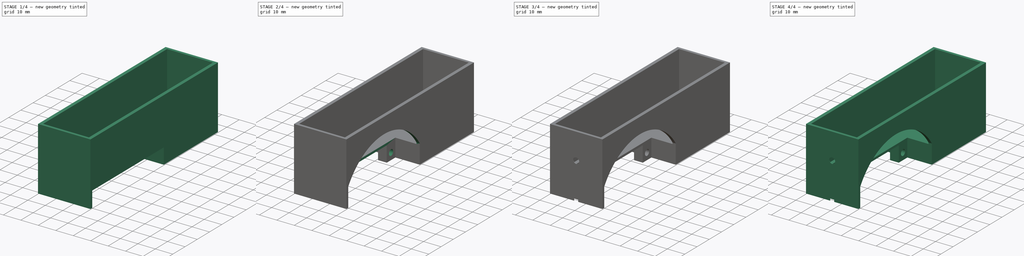
[diagram: build sequence overview — one tinted view per stage of 4, left to right]
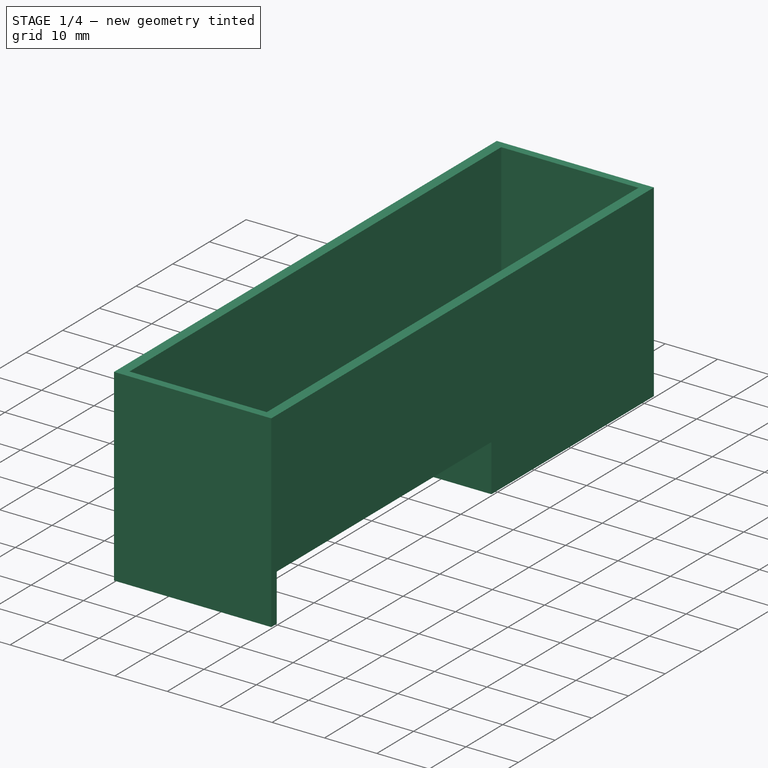
[diagram: stage 1 of 4 — iso view after this stage's code; geometry added in this stage tinted green]
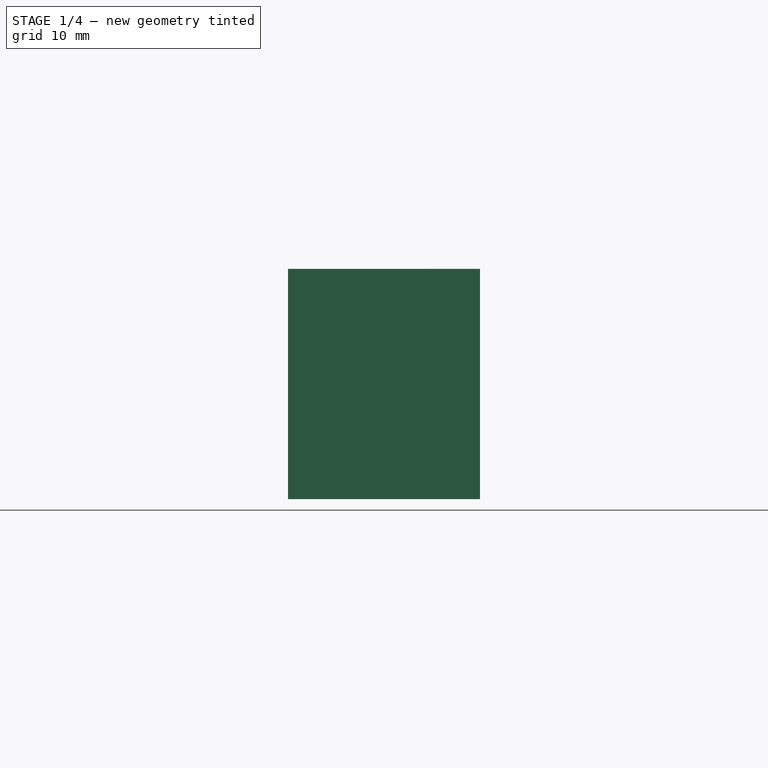
[diagram: stage 1 of 4 — front view after this stage's code; geometry added in this stage tinted green]
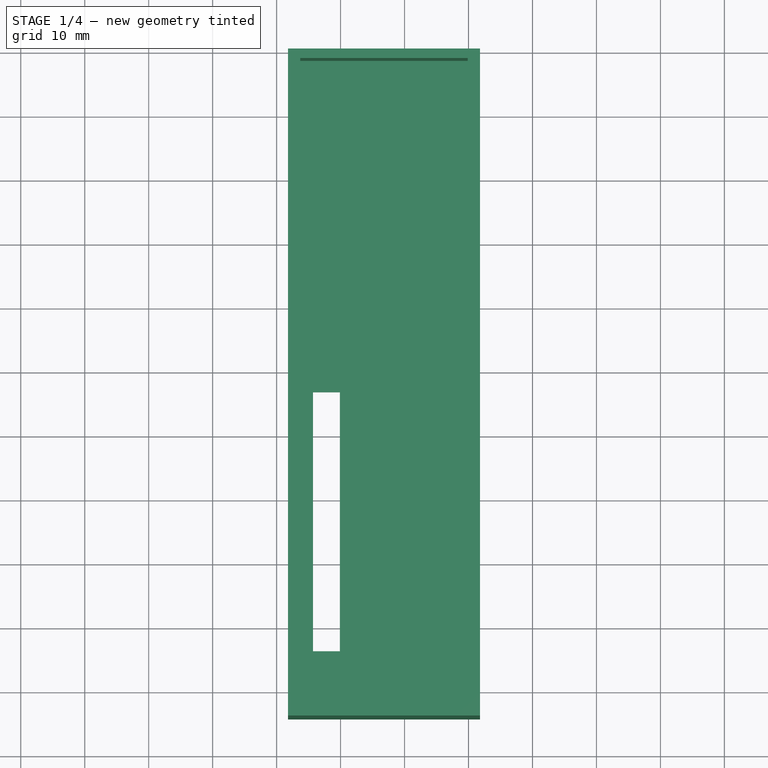
[diagram: stage 1 of 4 — top view after this stage's code; geometry added in this stage tinted green]
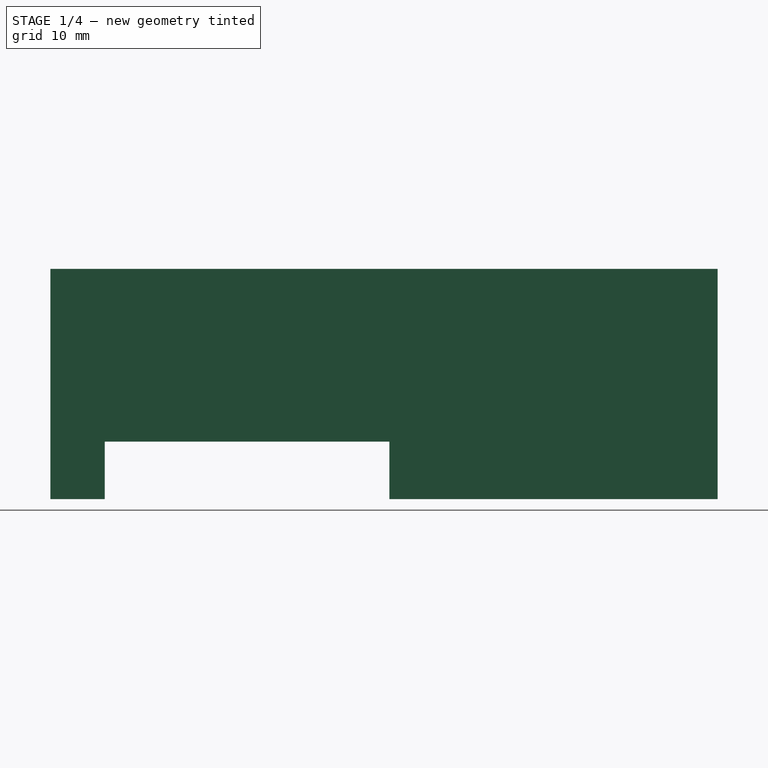
[diagram: stage 1 of 4 — right view after this stage's code; geometry added in this stage tinted green]
FCSTD DOCUMENT  (FreeCAD 1.0R39109 (Git))
Label: hdd holder
License: All rights reserved
LicenseURL: https://en.wikipedia.org/wiki/All_rights_reserved
objects: Sketcher::SketchObject×10, Part::FeaturePython×4, PartDesign::Pad×3, PartDesign::Hole×3, PartDesign::Pocket×3, Part::Extrusion×2, PartDesign::Body×1, App::DocumentObjectGroup×1
note: 54 computed .brp shape members not serialized (recipe doc carries the construction recipe); baked Part::Feature solids carry a one-line shape summary decoded from their .brp

FEATURE [Sketcher::SketchObject] Sketch
  ArcFitTolerance = 1e-06
  AttachmentSupport = -> [XY_Plane]
  FullyConstrained = false
  MakeInternals = false
  MapMode = 5
  sketch-geometry (8):
    g0: LineSegment StartX=-36.3129 StartY=58.5914 StartZ=0 EndX=-36.3129 EndY=-42.7086 EndZ=0
    g1: LineSegment StartX=-36.3129 StartY=-42.7086 StartZ=0 EndX=-10.1129 EndY=-42.7086 EndZ=0
    g2: LineSegment StartX=-10.1129 StartY=-42.7086 StartZ=0 EndX=-10.1129 EndY=58.5914 EndZ=0
    g3: LineSegment StartX=-10.1129 StartY=58.5914 StartZ=0 EndX=-36.3129 EndY=58.5914 EndZ=0
    g4: LineSegment StartX=-34.3129 StartY=6.79144 StartZ=0 EndX=-34.3129 EndY=-33.7086 EndZ=0
    g5: LineSegment StartX=-34.3129 StartY=-33.7086 StartZ=0 EndX=-30.1129 EndY=-33.7086 EndZ=0
    g6: LineSegment StartX=-30.1129 StartY=-33.7086 StartZ=0 EndX=-30.1129 EndY=6.79144 EndZ=0
    g7: LineSegment StartX=-30.1129 StartY=6.79144 StartZ=0 EndX=-34.3129 EndY=6.79144 EndZ=0
  constraints (22):
    c: Coincident(g0,g1)
    c: Coincident(g1,g2)
    c: Coincident(g2,g3)
    c: Coincident(g3,g0)
    c: Vertical(g0)
    c: Vertical(g2)
    c: Horizontal(g1)
    c: Horizontal(g3)
    c: DistanceY(g1,g2) = 101.3
    c: DistanceX(g0,g1) = 26.2
    c: Coincident(g4,g5)
    c: Coincident(g5,g6)
    c: Coincident(g6,g7)
    c: Coincident(g7,g4)
    c: Vertical(g4)
    c: Vertical(g6)
    c: Horizontal(g5)
    c: Horizontal(g7)
    c: DistanceX(g4,g5) = 4.2
    c: DistanceY(g5,g6) = 40.5
    c: Distance(g0,g4) = 2
    c: Distance(g1,g5) = 9
FEATURE [PartDesign::Pad] Pad  label="base"
  Direction = (0,0,1)
  Length = 1.25
  Length2 = 10
  Profile = -> Sketch
  ReferenceAxis = -> Sketch [N_Axis]
  Refine = true
  Suppressed = false
  Type = 0
FEATURE [Sketcher::SketchObject] Sketch001
  ArcFitTolerance = 1e-06
  AttachmentSupport = -> [Pad]
  ExternalGeometry = -> [Pad]
  FullyConstrained = true
  MakeInternals = false
  MapMode = 5
  Placement = pos=(0,0,0) rot=(1,0,0;3.14159rad)
  sketch-geometry (8):
    g0: LineSegment StartX=-38.2129 StartY=44.2086 StartZ=0 EndX=-38.2129 EndY=-60.0914 EndZ=0
    g1: LineSegment StartX=-38.2129 StartY=-60.0914 StartZ=0 EndX=-8.21293 EndY=-60.0914 EndZ=0
    g2: LineSegment StartX=-8.21293 StartY=-60.0914 StartZ=0 EndX=-8.21293 EndY=44.2086 EndZ=0
    g3: LineSegment StartX=-8.21293 StartY=44.2086 StartZ=0 EndX=-38.2129 EndY=44.2086 EndZ=0
    g4: LineSegment StartX=-36.3129 StartY=42.7086 StartZ=0 EndX=-36.3129 EndY=-58.5914 EndZ=0
    g5: LineSegment StartX=-36.3129 StartY=-58.5914 StartZ=0 EndX=-10.1129 EndY=-58.5914 EndZ=0
    g6: LineSegment StartX=-10.1129 StartY=-58.5914 StartZ=0 EndX=-10.1129 EndY=42.7086 EndZ=0
    g7: LineSegment StartX=-10.1129 StartY=42.7086 StartZ=0 EndX=-36.3129 EndY=42.7086 EndZ=0
  constraints (22):
    c: Coincident(g0,g1)
    c: Coincident(g1,g2)
    c: Coincident(g2,g3)
    c: Coincident(g3,g0)
    c: Vertical(g0)
    c: Vertical(g2)
    c: Horizontal(g1)
    c: Horizontal(g3)
    c: Coincident(g4,g5)
    c: Coincident(g5,g6)
    c: Coincident(g6,g7)
    c: Coincident(g7,g4)
    c: Vertical(g4)
    c: Vertical(g6)
    c: Horizontal(g5)
    c: Horizontal(g7)
    c: Coincident(g4,g-4)
    c: Coincident(g5,g-6)
    c: Distance(g2,g6) = 1.9
    c: Distance(g0,g4) = 1.9
    c: Distance(g7,g3) = 1.5
    c: Distance(g1,g5) = 1.5
FEATURE [PartDesign::Pad] Pad001  label="walls"
  BaseFeature = -> Pad
  Direction = (0,0,-1)
  Length = 27
  Length2 = 10
  Profile = -> Sketch001
  ReferenceAxis = -> Sketch001 [N_Axis]
  Refine = true
  Reversed = true
  Suppressed = false
  Type = 0
FEATURE [Sketcher::SketchObject] Sketch002
  ArcFitTolerance = 1e-06
  AttachmentSupport = -> [Pad001]
  ExternalGeometry = -> [Pad001]
  FullyConstrained = true
  MakeInternals = false
  MapMode = 5
  Placement = pos=(0,0,0) rot=(1,0,0;3.14159rad)
  sketch-geometry (16):
    g0: LineSegment StartX=-38.2129 StartY=44.2086 StartZ=0 EndX=-8.21293 EndY=44.2086 EndZ=0
    g1: LineSegment StartX=-8.21293 StartY=44.2086 StartZ=0 EndX=-8.21293 EndY=42.7086 EndZ=0
    g2: LineSegment StartX=-8.21293 StartY=42.7086 StartZ=0 EndX=-22.2129 EndY=42.7086 EndZ=0
    g3: LineSegment StartX=-22.2129 StartY=42.7086 StartZ=0 EndX=-22.2129 EndY=35.7086 EndZ=0
    g4: LineSegment StartX=-22.2129 StartY=35.7086 StartZ=0 EndX=-27.2129 EndY=35.7086 EndZ=0
    g5: LineSegment StartX=-27.2129 StartY=35.7086 StartZ=0 EndX=-27.2129 EndY=42.7086 EndZ=0
    g6: LineSegment StartX=-27.2129 StartY=42.7086 StartZ=0 EndX=-38.2129 EndY=42.7086 EndZ=0
    g7: LineSegment StartX=-38.2129 StartY=42.7086 StartZ=0 EndX=-38.2129 EndY=44.2086 EndZ=0
    g8: LineSegment StartX=-8.21293 StartY=-60.0914 StartZ=0 EndX=-8.21293 EndY=-15.7914 EndZ=0
    g9: LineSegment StartX=-8.21293 StartY=-15.7914 StartZ=0 EndX=-22.2129 EndY=-15.7914 EndZ=0
    g10: LineSegment StartX=-22.2129 StartY=-15.7914 StartZ=0 EndX=-22.2129 EndY=-8.79144 EndZ=0
    g11: LineSegment StartX=-22.2129 StartY=-8.79144 StartZ=0 EndX=-27.2129 EndY=-8.79144 EndZ=0
    g12: LineSegment StartX=-27.2129 StartY=-8.79144 StartZ=0 EndX=-27.2129 EndY=-15.7914 EndZ=0
    g13: LineSegment StartX=-27.2129 StartY=-15.7914 StartZ=0 EndX=-38.2129 EndY=-15.7914 EndZ=0
    g14: LineSegment StartX=-38.2129 StartY=-15.7914 StartZ=0 EndX=-38.2129 EndY=-60.0914 EndZ=0
    g15: LineSegment StartX=-38.2129 StartY=-60.0914 StartZ=0 EndX=-8.21293 EndY=-60.0914 EndZ=0
  constraints (44):
    c: Coincident(g-5,g0)
    c: Coincident(g0,g-4)
    c: Coincident(g0,g1)
    c: PointOnObject(g1,g-4)
    c: Coincident(g1,g2)
    c: Horizontal(g2)
    c: Coincident(g2,g3)
    c: Vertical(g3)
    c: Coincident(g3,g4)
    c: Coincident(g5,g6)
    c: Coincident(g7,g0)
    c: Vertical(g5)
    c: Horizontal(g4)
    c: Horizontal(g6)
    c: Coincident(g5,g4)
    c: DistanceX(g2,g1) = 14
    c: DistanceX(g6,g5) = 11
    c: Horizontal(g2,g5)
    c: Coincident(g-10,g8)
    c: PointOnObject(g8,g-4)
    c: Coincident(g8,g9)
    c: Horizontal(g9)
    c: Coincident(g9,g10)
    c: Vertical(g10)
    c: Coincident(g10,g11)
    c: Coincident(g11,g12)
    c: Vertical(g12)
    c: Coincident(g12,g13)
    c: Horizontal(g13)
    c: Coincident(g14,g-10)
    c: Coincident(g15,g14)
    c: Coincident(g15,g8)
    c: Horizontal(g9,g12)
    c: Horizontal(g11)
    c: PointOnObject(g14,g-5)
    c: Equal(g2,g9)
    c: Equal(g6,g13)
    c: Equal(g3,g10)
    c: DistanceY(g3,g2) = 7
    c: DistanceY(g-7,g4) = 2
    c: DistanceY(g11,g-9) = 2
    c: Coincident(g6,g7)
    c: PointOnObject(g6,g-5)
    c: Coincident(g13,g14)
FEATURE [PartDesign::Pad] Pad002  label="feet"
  BaseFeature = -> Pad001
  Direction = (0,0,-1)
  Length = 9
  Length2 = 10
  Profile = -> Sketch002
  ReferenceAxis = -> Sketch002 [N_Axis]
  Refine = true
  Suppressed = false
  Type = 0
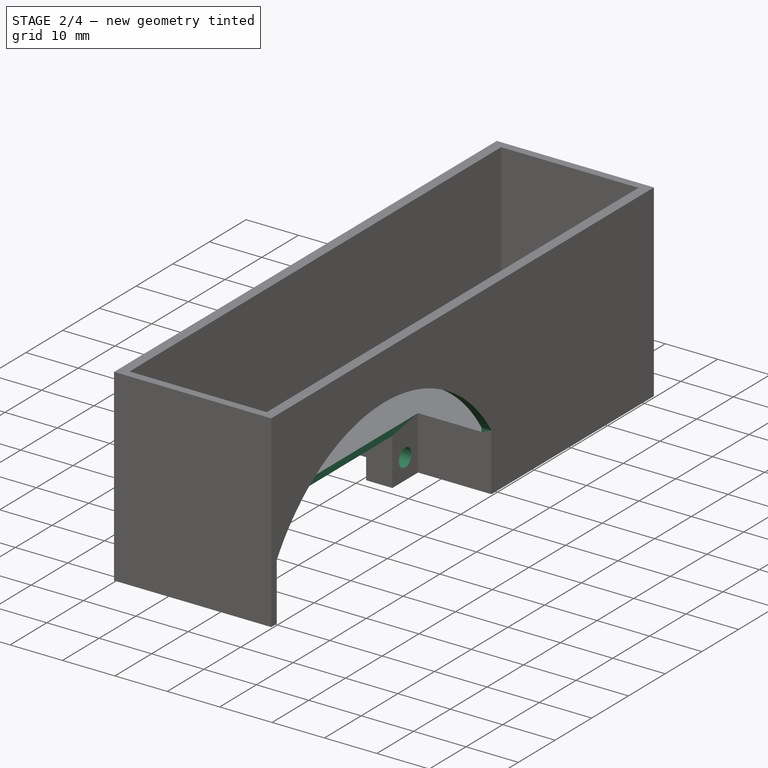
[diagram: stage 2 of 4 — iso view after this stage's code; geometry added in this stage tinted green]
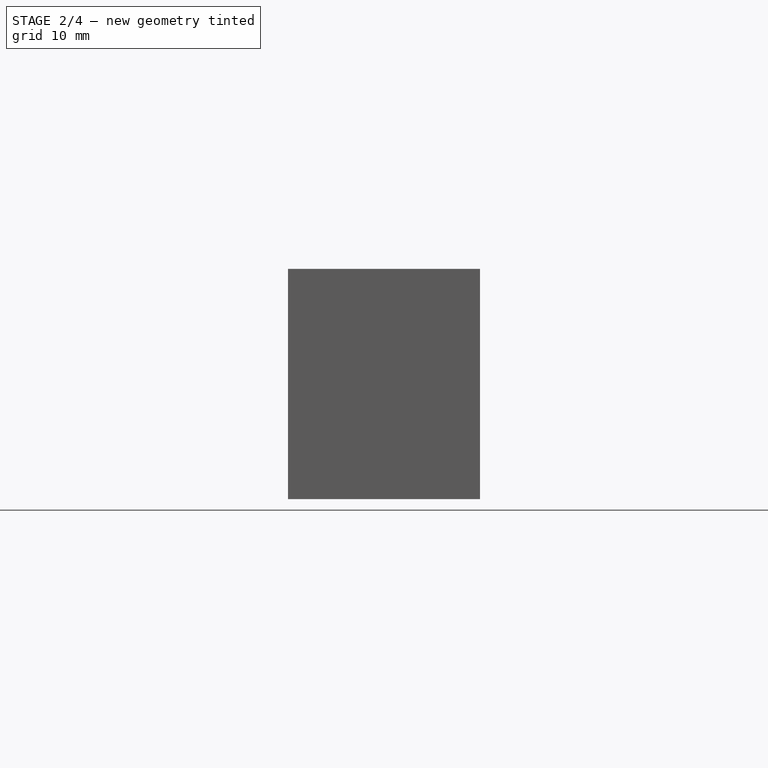
[diagram: stage 2 of 4 — front view after this stage's code; geometry added in this stage tinted green]
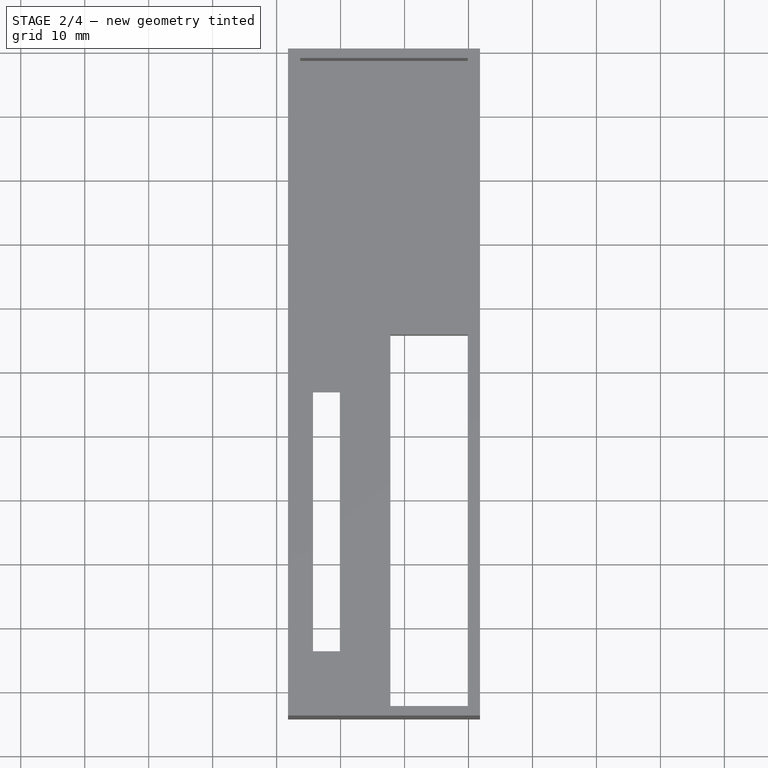
[diagram: stage 2 of 4 — top view after this stage's code; geometry added in this stage tinted green]
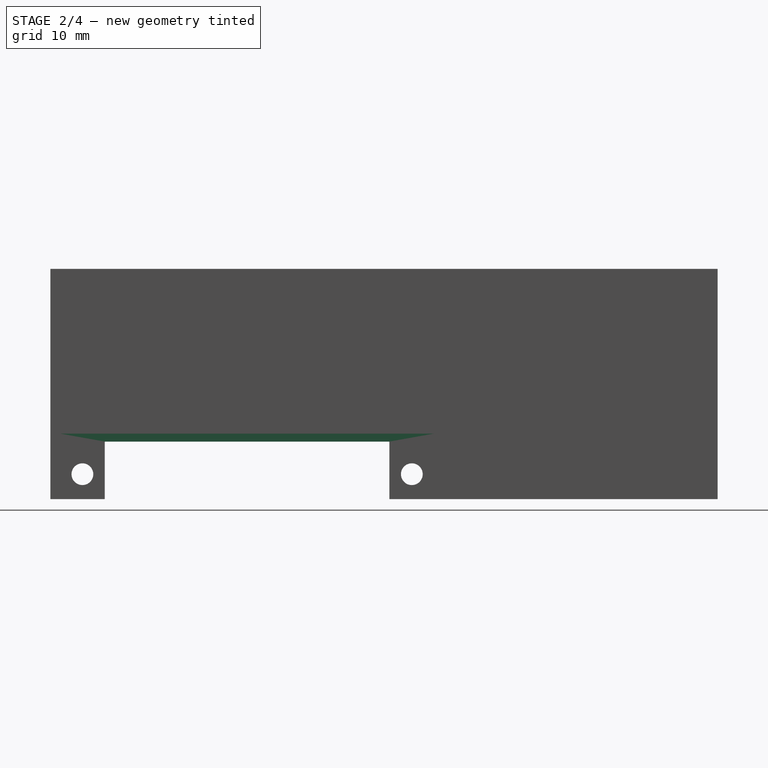
[diagram: stage 2 of 4 — right view after this stage's code; geometry added in this stage tinted green]
FEATURE [Sketcher::SketchObject] Sketch005
  ArcFitTolerance = 1e-06
  FullyConstrained = true
  MakeInternals = false
  MapMode = 5
  Placement = pos=(-38.2129,0,0) rot=(0.57735,-0.57735,-0.57735;2.0944rad)
  sketch-geometry (2):
    g0: Circle CenterX=-12.2914 CenterY=-5.1 CenterZ=0 NormalX=0 NormalY=0 NormalZ=1 AngleXU=0 Radius=1.5
    g1: Circle CenterX=39.2086 CenterY=-5.1 CenterZ=0 NormalX=0 NormalY=0 NormalZ=1 AngleXU=0 Radius=1.5
  constraints (6):
    c: Equal(g1,g0)
    c: Diameter(g1) = 3
    c: Distance(g1,g-5) = 3.5
    c: DistanceY(g-6,g1) = 3.9
    c: Distance(g0,g-7) = 3.9
    c: DistanceX(g-4,g0) = 3.5
FEATURE [PartDesign::Hole] Hole  label="connector mount holes"
  BaseFeature = -> Pad002
  CustomThreadClearance = 0
  Depth = 20
  DepthType = 0
  Diameter = 3.4
  DrillForDepth = false
  DrillPoint = 1
  DrillPointAngle = 118
  HoleCutCountersinkAngle = 90
  HoleCutCustomValues = false
  HoleCutDepth = 0
  HoleCutDiameter = 6.1
  HoleCutType = 2
  ModelThread = false
  Profile = -> Sketch005
  Refine = true
  Suppressed = false
  Tapered = false
  TaperedAngle = 90
  ThreadClass = 0
  ThreadDepth = 20
  ThreadDepthType = 0
  ThreadDirection = 0
  ThreadFit = 0
  ThreadSize = 9
  ThreadType = 1
  Threaded = false
  UseCustomThreadClearance = false
FEATURE [Sketcher::SketchObject] Sketch006
  ArcFitTolerance = 1e-06
  AttachmentSupport = -> [Hole]
  ExternalGeometry = -> [Hole]
  FullyConstrained = true
  MakeInternals = false
  MapMode = 5
  Placement = pos=(0,0,0) rot=(1,0,0;3.14159rad)
  sketch-geometry (4):
    g0: LineSegment StartX=-22.2129 StartY=42.7086 StartZ=0 EndX=-22.2129 EndY=-15.7914 EndZ=0
    g1: LineSegment StartX=-22.2129 StartY=-15.7914 StartZ=0 EndX=-8.21293 EndY=-15.7914 EndZ=0
    g2: LineSegment StartX=-8.21293 StartY=-15.7914 StartZ=0 EndX=-8.21293 EndY=42.7086 EndZ=0
    g3: LineSegment StartX=-8.21293 StartY=42.7086 StartZ=0 EndX=-22.2129 EndY=42.7086 EndZ=0
  constraints (10):
    c: Coincident(g0,g1)
    c: Coincident(g1,g2)
    c: Coincident(g2,g3)
    c: Coincident(g3,g0)
    c: Vertical(g0)
    c: Vertical(g2)
    c: Horizontal(g1)
    c: Horizontal(g3)
    c: Coincident(g0,g-4)
    c: Coincident(g1,g-7)
FEATURE [PartDesign::Pocket] Pocket  label="base cutout"
  BaseFeature = -> Hole
  Direction = (0,0,1)
  Length = 2
  Length2 = 5
  Profile = -> Sketch006
  ReferenceAxis = -> Sketch006 [N_Axis]
  Refine = true
  Suppressed = false
  Type = 0
FEATURE [Sketcher::SketchObject] Sketch007
  ArcFitTolerance = 1e-06
  AttachmentSupport = -> [Pocket]
  ExternalGeometry = -> [Pocket]
  FullyConstrained = false
  MakeInternals = false
  MapMode = 5
  Placement = pos=(-8.21293,0,0) rot=(0.57735,0.57735,0.57735;2.0944rad)
  sketch-geometry (2):
    g0: ArcOfCircle CenterX=-13.4586 CenterY=-16.7397 CenterZ=0 NormalX=0 NormalY=0 NormalZ=1 AngleXU=0 Radius=34.7382 StartAngle=0.569792 EndAngle=2.5718
    g1: LineSegment StartX=-42.7086 StartY=2 StartZ=0 EndX=15.7914 EndY=2 EndZ=0
  constraints (4):
    c: Coincident(g0,g-3)
    c: Coincident(g0,g-3)
    c: Coincident(g1,g0)
    c: Coincident(g1,g0)
FEATURE [PartDesign::Pocket] Pocket001  label="side cutout"
  BaseFeature = -> Pocket
  Direction = (-1,0,0)
  Length = 5
  Length2 = 5
  Profile = -> Sketch007
  ReferenceAxis = -> Sketch007 [N_Axis]
  Refine = true
  Suppressed = false
  Type = 0
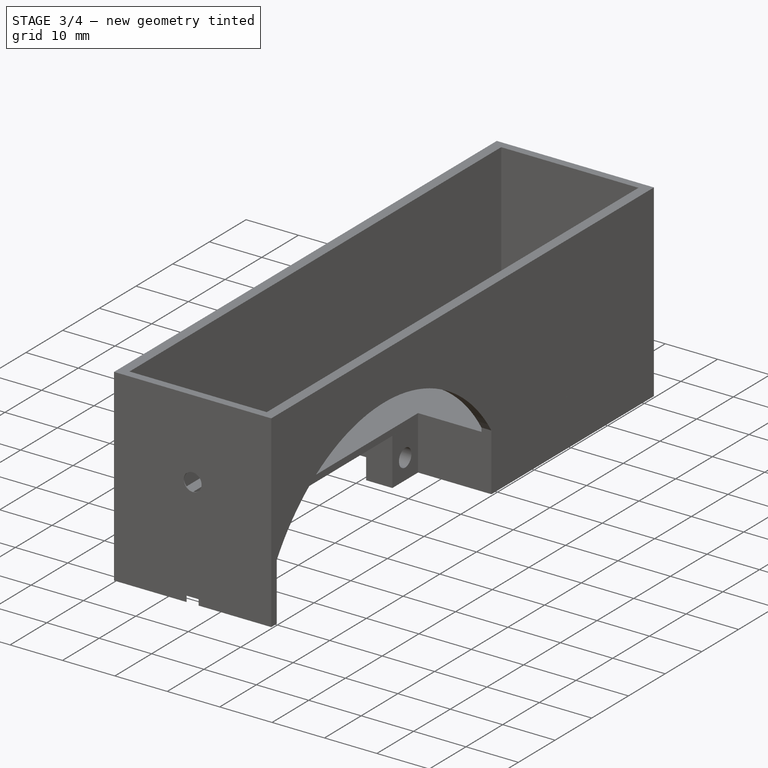
[diagram: stage 3 of 4 — iso view after this stage's code; geometry added in this stage tinted green]
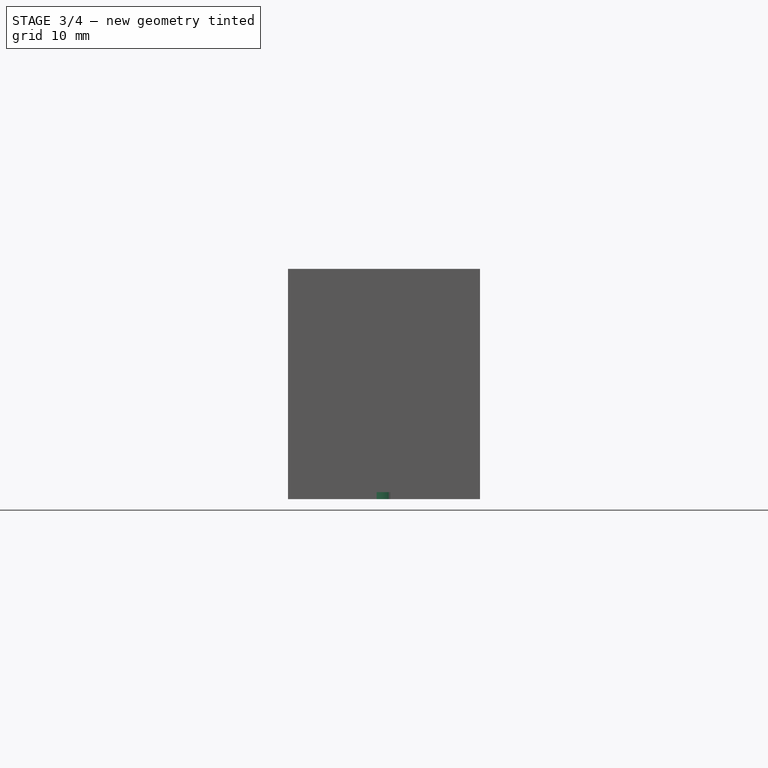
[diagram: stage 3 of 4 — front view after this stage's code; geometry added in this stage tinted green]
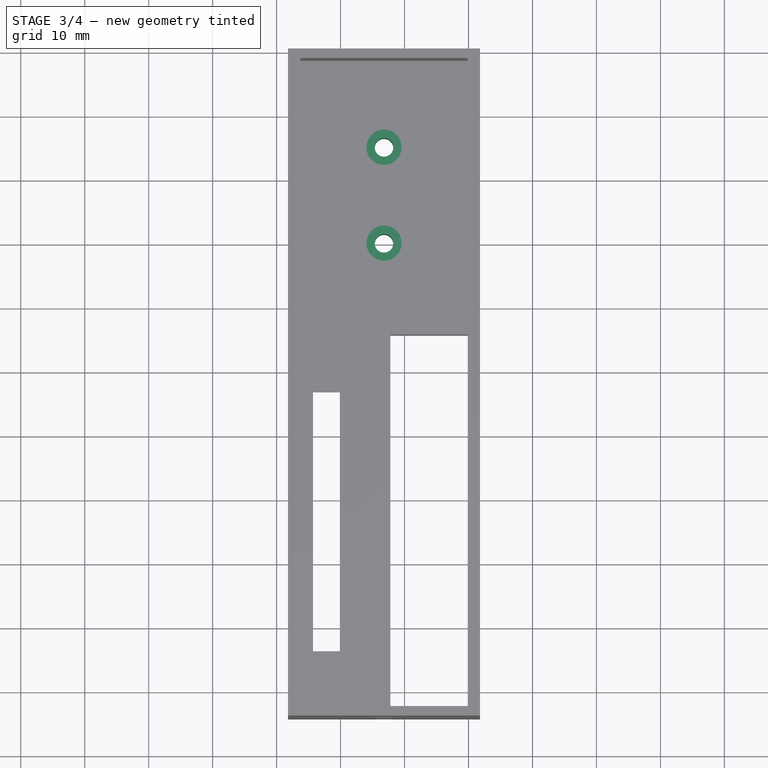
[diagram: stage 3 of 4 — top view after this stage's code; geometry added in this stage tinted green]
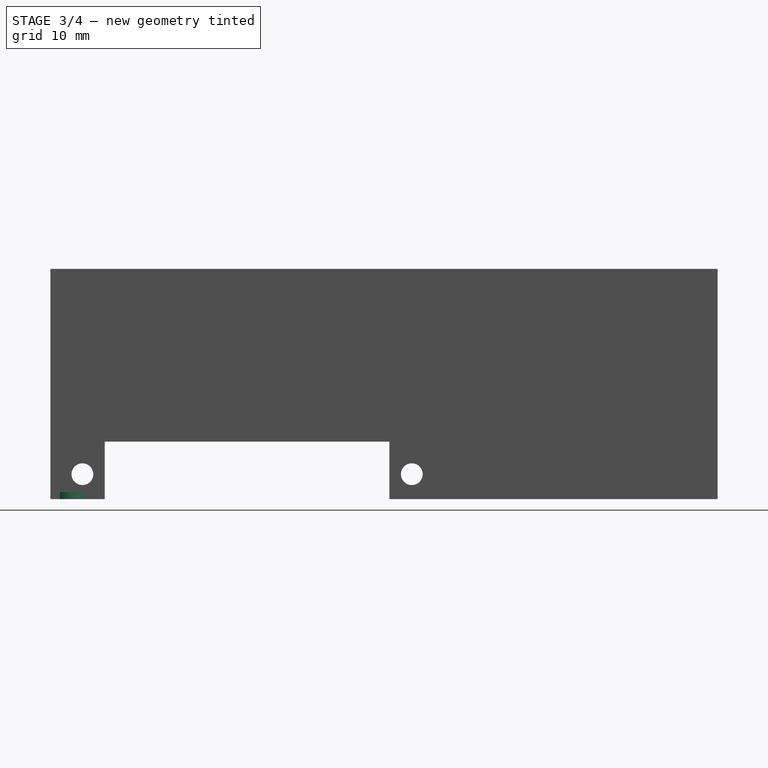
[diagram: stage 3 of 4 — right view after this stage's code; geometry added in this stage tinted green]
FEATURE [Sketcher::SketchObject] Sketch008
  ArcFitTolerance = 1e-06
  AttachmentSupport = -> [Pocket001]
  ExternalGeometry = -> [Pocket001]
  FullyConstrained = true
  MakeInternals = false
  MapMode = 5
  Placement = pos=(0,0,1.25) rot=(0,0,1;0rad)
  sketch-geometry (3):
    g0: Circle CenterX=-23.2129 CenterY=45.0914 CenterZ=0 NormalX=0 NormalY=0 NormalZ=1 AngleXU=0 Radius=1.25
    g1: Circle CenterX=-23.2129 CenterY=30.0914 CenterZ=0 NormalX=0 NormalY=0 NormalZ=1 AngleXU=0 Radius=1.25
    g2: GeomPoint [constr] X=-23.2129 Y=60.0914 Z=0
  constraints (7):
    c: Symmetric(g-3,g-3,g2)
    c: Vertical(g2,g0)
    c: Vertical(g0,g1)
    c: DistanceY(g0,g2) = 15
    c: DistanceY(g1,g0) = 15
    c: Equal(g0,g1)
    c: Diameter(g0) = 2.5
FEATURE [PartDesign::Hole] Hole001  label="base mount holes"
  BaseFeature = -> Pocket001
  CustomThreadClearance = 0
  Depth = 230.974
  DepthType = 1
  Diameter = 2.9
  DrillForDepth = false
  DrillPoint = 1
  DrillPointAngle = 118
  HoleCutCountersinkAngle = 90
  HoleCutCustomValues = false
  HoleCutDepth = 1
  HoleCutDiameter = 5.5
  HoleCutType = 1
  ModelThread = false
  Profile = -> Sketch008
  Refine = true
  Suppressed = false
  Tapered = false
  TaperedAngle = 90
  ThreadClass = 0
  ThreadDepth = 230.974
  ThreadDepthType = 0
  ThreadDirection = 0
  ThreadFit = 0
  ThreadSize = 8
  ThreadType = 1
  Threaded = false
  UseCustomThreadClearance = false
FEATURE [Sketcher::SketchObject] Sketch009
  ArcFitTolerance = 1e-06
  AttachmentSupport = -> [Hole001]
  ExternalGeometry = -> [Hole001]
  FullyConstrained = true
  MakeInternals = false
  MapMode = 5
  Placement = pos=(0,-42.7086,-1.92e-14) rot=(0,0.707107,0.707107;3.14159rad)
  sketch-geometry (2):
    g0: Circle CenterX=23.2129 CenterY=12 CenterZ=0 NormalX=0 NormalY=0 NormalZ=1 AngleXU=0 Radius=1.5
    g1: GeomPoint [constr] X=23.2129 Y=27 Z=0
  constraints (4):
    c: Symmetric(g-3,g-3,g1)
    c: Vertical(g1,g0)
    c: DistanceY(g0,g1) = 15
    c: Diameter(g0) = 3
FEATURE [PartDesign::Hole] Hole002  label="fan mount hole"
  BaseFeature = -> Hole001
  CustomThreadClearance = 0
  Depth = 25
  DepthType = 0
  Diameter = 3.4
  DrillForDepth = false
  DrillPoint = 1
  DrillPointAngle = 118
  HoleCutCountersinkAngle = 90
  HoleCutCustomValues = false
  HoleCutDepth = 0
  HoleCutDiameter = 6.1
  HoleCutType = 2
  ModelThread = false
  Profile = -> Sketch009
  Refine = true
  Suppressed = false
  Tapered = false
  TaperedAngle = 90
  ThreadClass = 0
  ThreadDepth = 25
  ThreadDepthType = 0
  ThreadDirection = 0
  ThreadFit = 0
  ThreadSize = 9
  ThreadType = 1
  Threaded = false
  UseCustomThreadClearance = false
FEATURE [Sketcher::SketchObject] Sketch010
  ArcFitTolerance = 1e-06
  AttachmentSupport = -> [Hole002]
  ExternalGeometry = -> [Hole002]
  FullyConstrained = true
  MakeInternals = false
  MapMode = 5
  Placement = pos=(0,0,-9) rot=(1,0,0;3.14159rad)
  sketch-geometry (1):
    g0: Circle CenterX=-23.2129 CenterY=41.7086 CenterZ=0 NormalX=0 NormalY=0 NormalZ=1 AngleXU=0 Radius=2.75
  constraints (3):
    c: Vertical(g-3,g0)
    c: Distance(g0,g-4) = 2.5
    c: Diameter(g0) = 5.5
FEATURE [PartDesign::Pocket] Pocket002  label="screw head pocket"
  BaseFeature = -> Hole002
  Direction = (0,0,1)
  Length = 1.1
  Length2 = 5
  Profile = -> Sketch010
  ReferenceAxis = -> Sketch010 [N_Axis]
  Refine = true
  Suppressed = false
  Type = 0
FEATURE [Sketcher::SketchObject] Sketch011
  ArcFitTolerance = 1e-06
  AttachmentSupport = -> [Pocket002]
  ExternalGeometry = -> [Pocket002]
  FullyConstrained = false
  MakeInternals = false
  MapMode = 5
  Placement = pos=(-8.21293,0,0) rot=(0.57735,0.57735,0.57735;2.0944rad)
  sketch-geometry (1):
    g0: LineSegment StartX=-58.8205 StartY=0 StartZ=0 EndX=74.4438 EndY=0 EndZ=0
  constraints (2):
    c: Horizontal(g0)
    c: PointOnObject(g-3,g0)
FEATURE [PartDesign::Body] Body
  AllowCompound = false
  Group = -> [Sketch,Pad,Sketch001,Pad001,Sketch002,Pad002,Sketch005,Hole,Sketch006,Pocket,Sketch007,Pocket001,Sketch008,Hole001,Sketch009,Hole002,Sketch010,Pocket002,Sketch011]
  Origin = -> Origin
  Tip = -> Pocket002
FEATURE [Part::Extrusion] Extrude
  Base = -> Sketch011
  Dir = (1,0,0)
  DirMode = 2
  FaceMakerClass = Part::FaceMakerBullseye
  FaceMakerMode = 3
  LengthFwd = 10
  LengthRev = 30
  Solid = false
  Symmetric = false
FEATURE [Part::Extrusion] Extrude001
  Base = -> Sketch011
  Dir = (1,0,0)
  DirMode = 2
  FaceMakerClass = Part::FaceMakerBullseye
  FaceMakerMode = 3
  LengthFwd = 10
  LengthRev = 30
  Solid = false
  Symmetric = false
FEATURE [Part::FeaturePython] Slice  # WARN: FeaturePython — macro-defined, semantics opaque (R4)
  Base = -> Pocket002
  Mode = 1
  Tolerance = 0
  Tools = -> [Extrude]
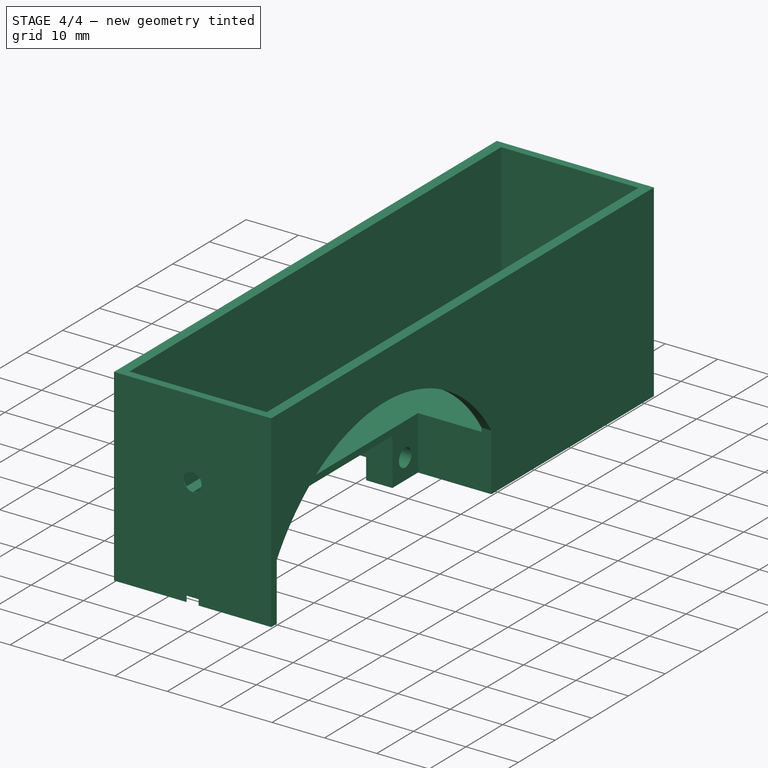
[diagram: stage 4 of 4 — iso view after this stage's code; geometry added in this stage tinted green]
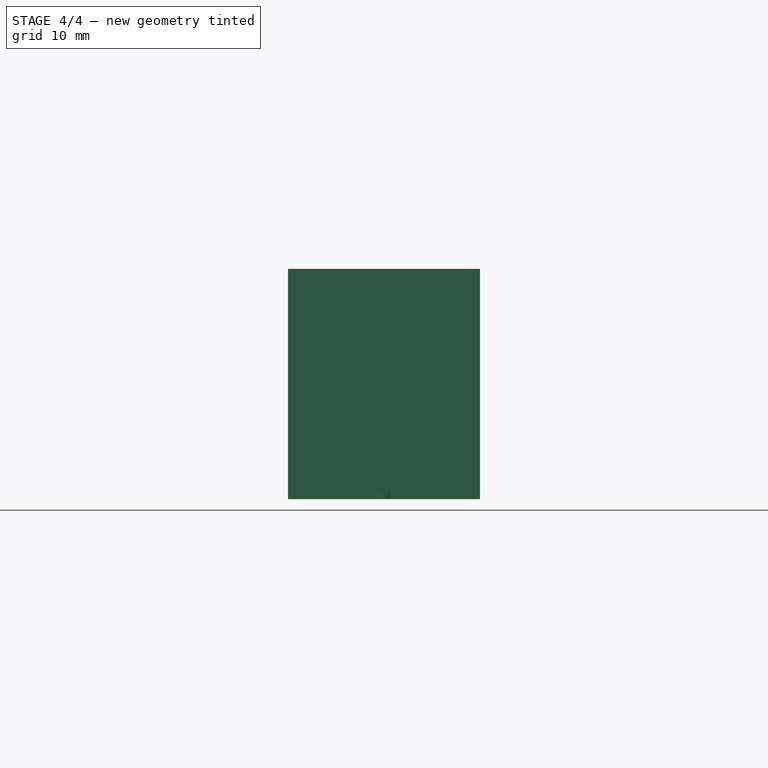
[diagram: stage 4 of 4 — front view after this stage's code; geometry added in this stage tinted green]
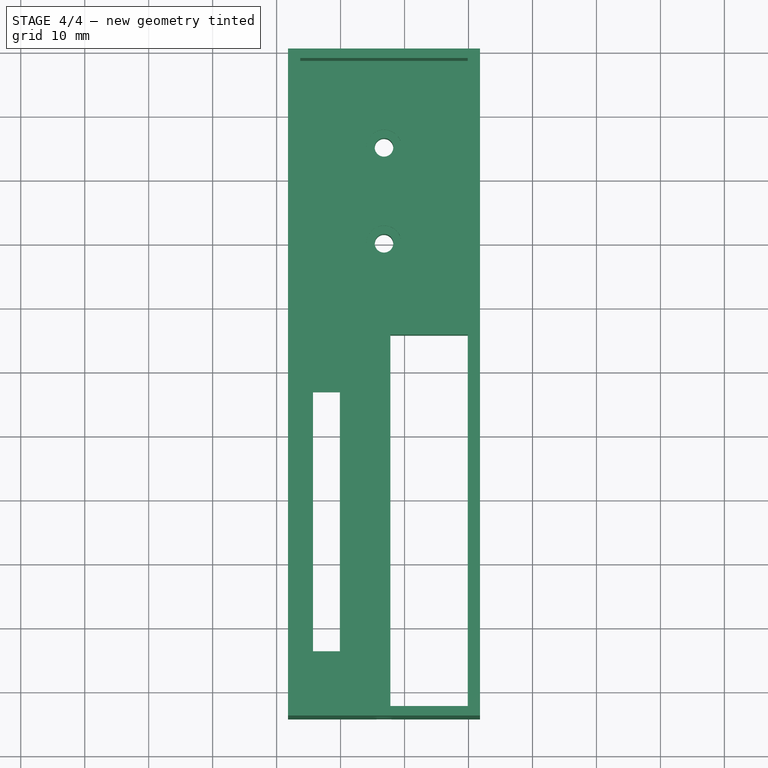
[diagram: stage 4 of 4 — top view after this stage's code; geometry added in this stage tinted green]
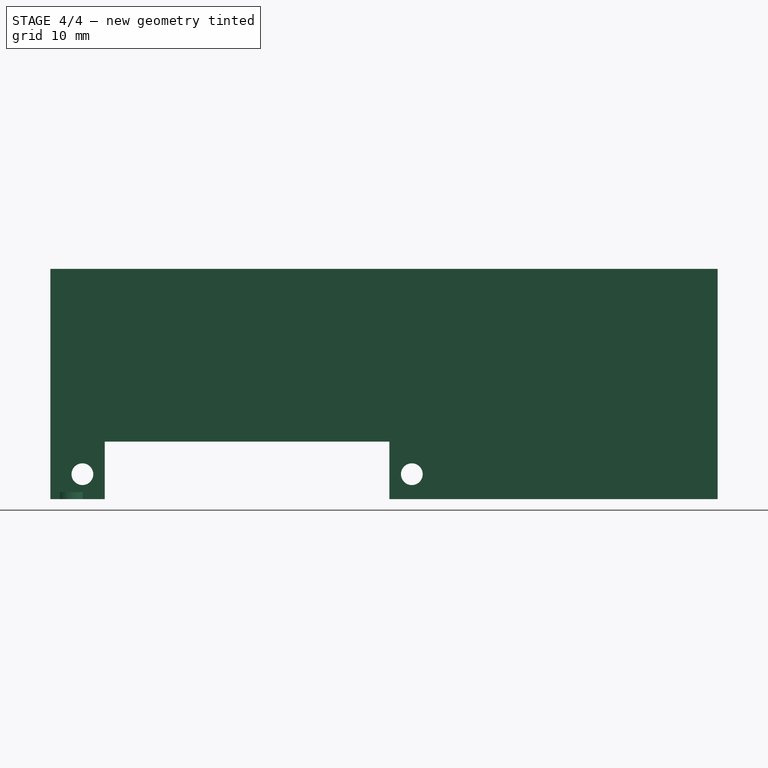
[diagram: stage 4 of 4 — right view after this stage's code; geometry added in this stage tinted green]
FEATURE [Part::FeaturePython] Slice_child0  label="Slice.0"  # WARN: FeaturePython — macro-defined, semantics opaque (R4)
  Base = -> Slice
  FilterType = 1
  Invert = false
  OverrideMaxVal = 0
  WindowFrom = 80
  WindowTo = 100
  items = 0
FEATURE [Part::FeaturePython] Slice_child1  label="Slice.1"  # WARN: FeaturePython — macro-defined, semantics opaque (R4)
  Base = -> Slice
  FilterType = 1
  Invert = false
  OverrideMaxVal = 0
  WindowFrom = 80
  WindowTo = 100
  items = 1
FEATURE [Part::FeaturePython] Slice_child2  label="Slice.2"  # WARN: FeaturePython — macro-defined, semantics opaque (R4)
  Base = -> Slice
  FilterType = 1
  Invert = false
  OverrideMaxVal = 0
  WindowFrom = 80
  WindowTo = 100
  items = 2
FEATURE [App::DocumentObjectGroup] GrExplode_Slice  label="Exploded Slice"
  Group = -> [Slice_child0,Slice_child1,Slice_child2]
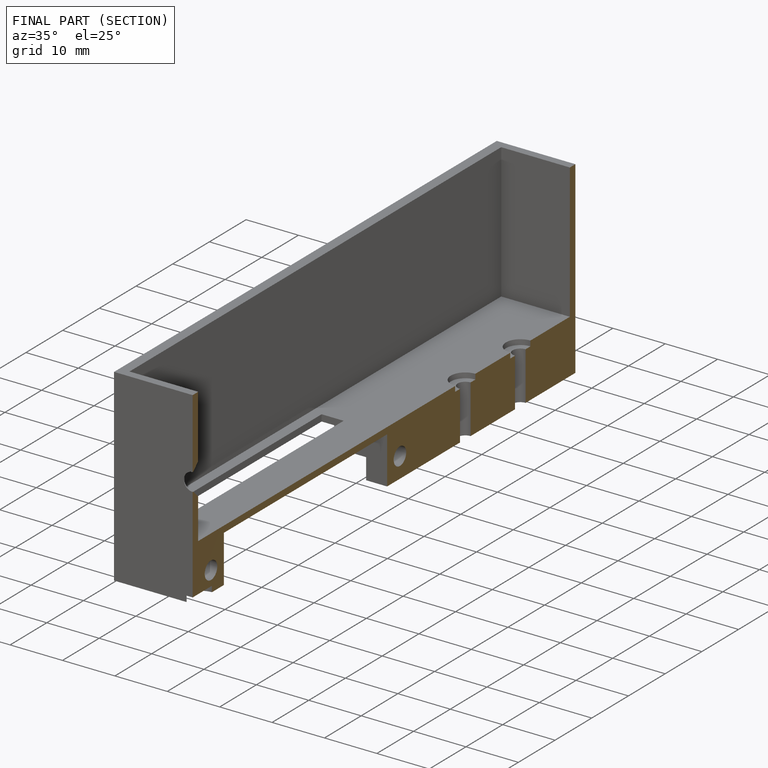
[diagram: finished part — half-section view (interior)]
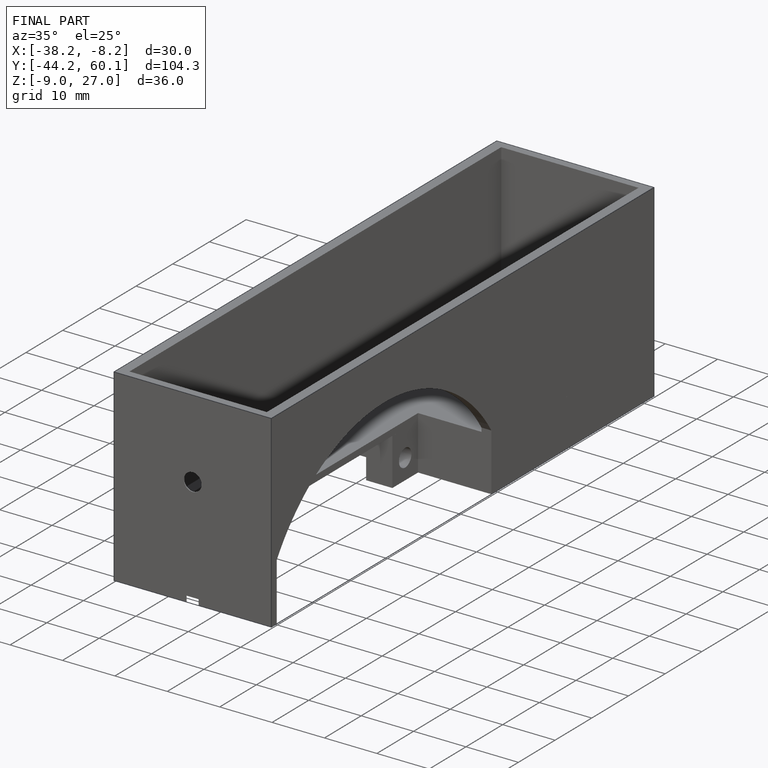
[diagram: finished part — iso view with bounding-box wireframe]
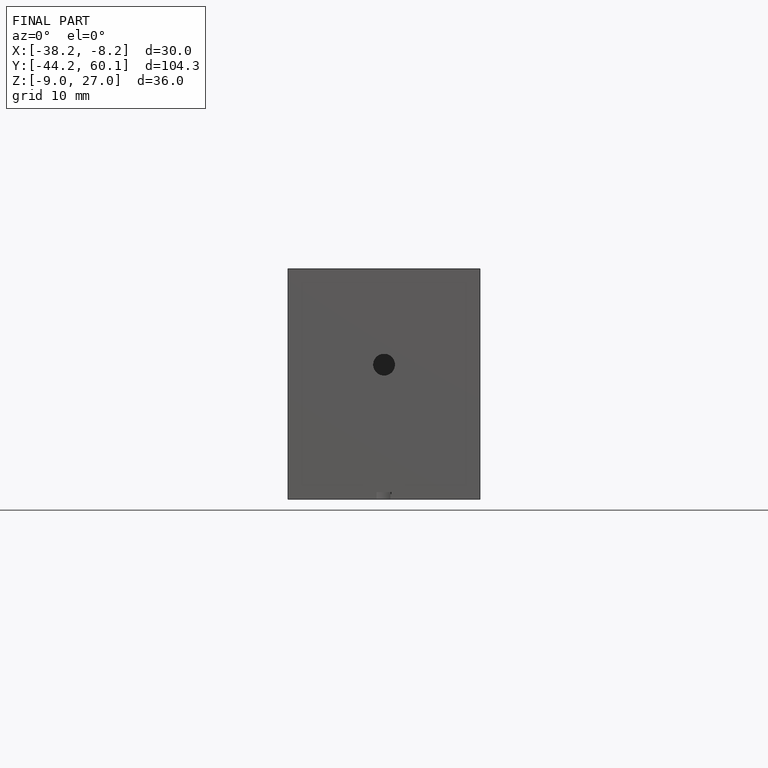
[diagram: finished part — front view with bounding-box wireframe]
